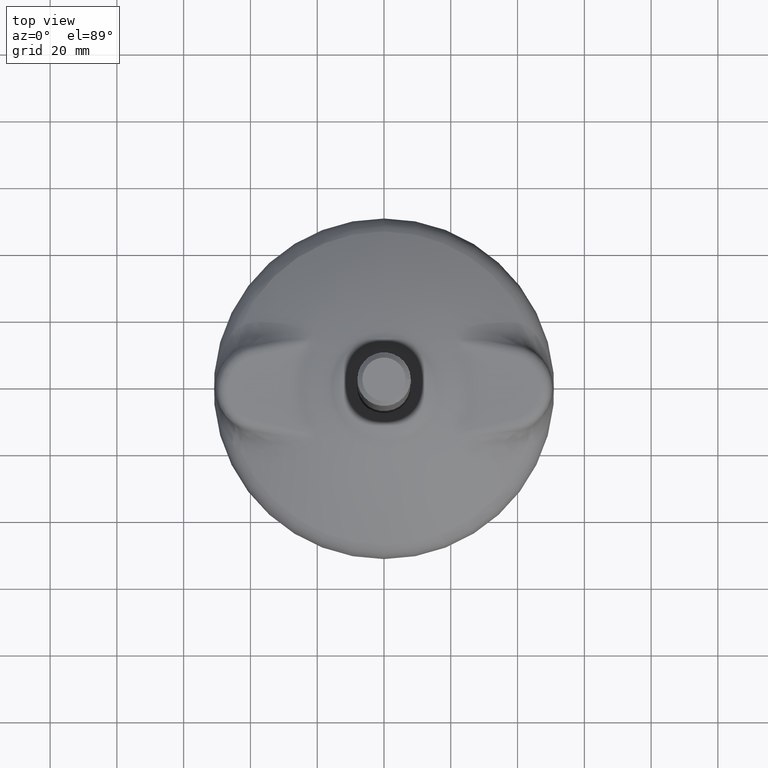
[diagram: clean part render]
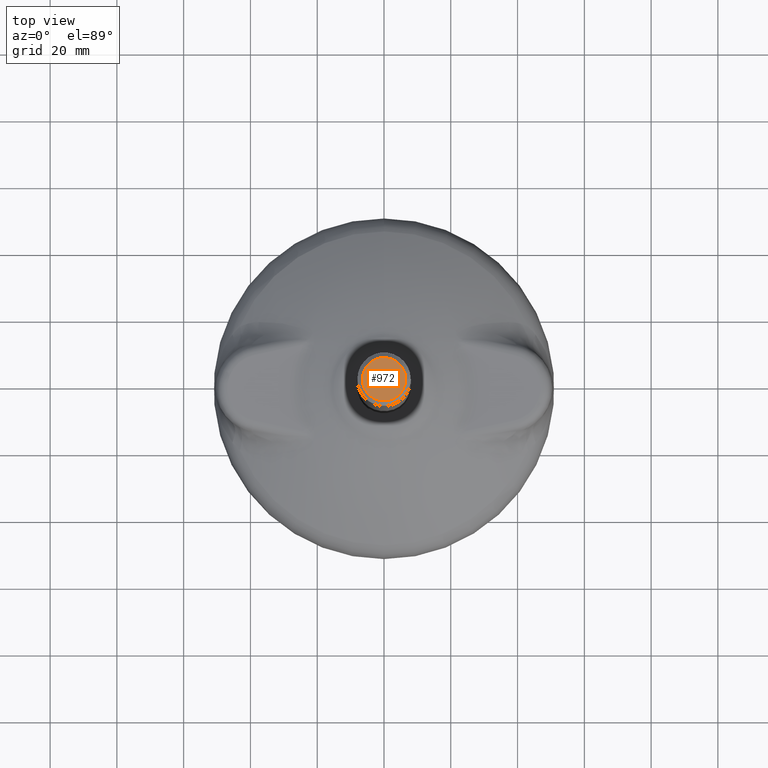
[diagram: same view with one face highlighted and labeled with its STEP entity id]
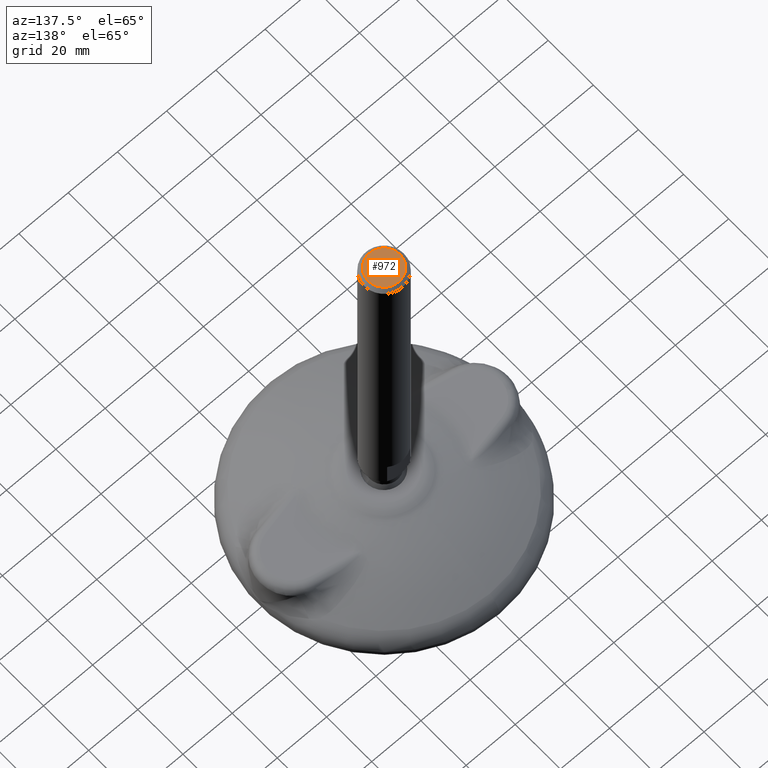
[diagram: same view with one face highlighted and labeled with its STEP entity id]
A machine part, top view. The second image highlights one B-rep face of the part: STEP entity #972.
A second angle (auxiliary view) of the same face is appended — the face is thin or edge-on in the first view.
In plain terms, the highlighted planar face has unit normal (0, 0, 1).
Its self-contained STEP definition (entity closure, byte-faithful):
#207=FACE_OUTER_BOUND('',#275,.T.);
#275=EDGE_LOOP('',(#829));
#352=CIRCLE('',#1116,6.5);
#435=VERTEX_POINT('',#5473);
#567=EDGE_CURVE('',#435,#435,#352,.T.);
#829=ORIENTED_EDGE('',*,*,#567,.T.);
#849=PLANE('',#1115);
#972=ADVANCED_FACE('',(#207),#849,.T.);
#1115=AXIS2_PLACEMENT_3D('',#5472,#1376,#1377);
#1116=AXIS2_PLACEMENT_3D('',#5474,#1378,#1379);
#1376=DIRECTION('center_axis',(0.,0.,1.));
#1377=DIRECTION('ref_axis',(1.,0.,0.));
#1378=DIRECTION('center_axis',(0.,0.,1.));
#1379=DIRECTION('ref_axis',(1.,0.,0.));
#5472=CARTESIAN_POINT('Origin',(0.,0.,165.000215401367));
#5473=CARTESIAN_POINT('',(6.5,0.,165.000215401367));
#5474=CARTESIAN_POINT('Origin',(0.,0.,165.000215401367));